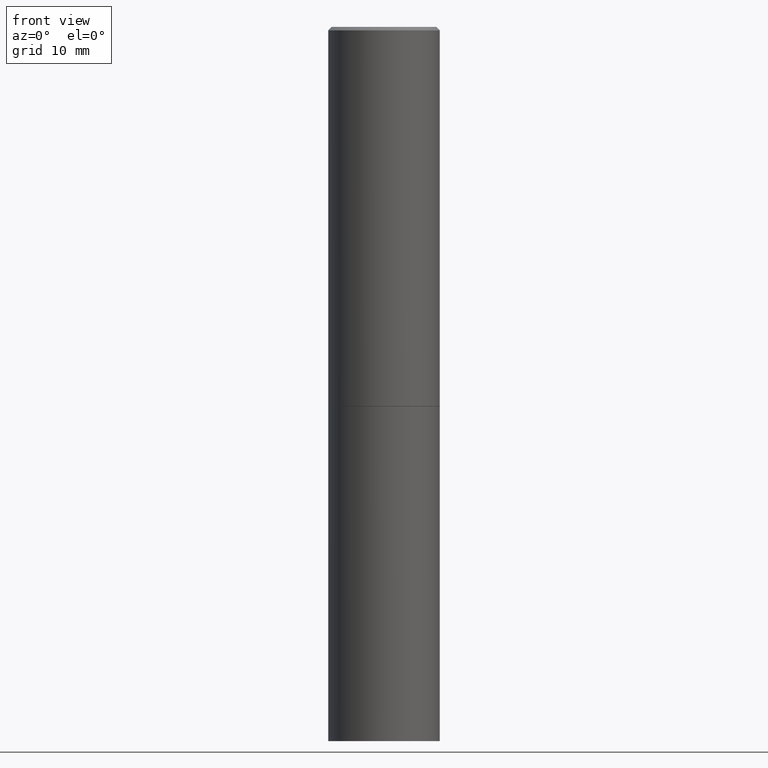
[diagram: clean part render]
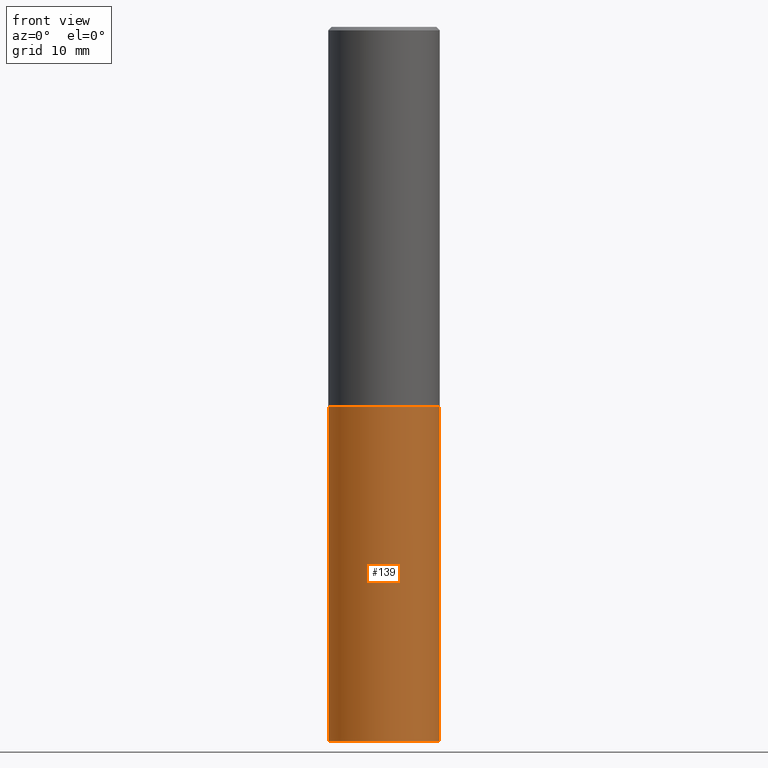
[diagram: same view with one face highlighted and labeled with its STEP entity id]
A machine part, front view. The second image highlights one B-rep face of the part: STEP entity #139.
In plain terms, the highlighted cylindrical surface (partial cylindrical patch) has radius 7.9375 mm, axis along (-0, 0, 1).
Its self-contained STEP definition (entity closure, byte-faithful):
#7 = FACE_OUTER_BOUND ( 'NONE', #359, .T. ) ;
#29 = DIRECTION ( 'NONE',  ( -2.445468806185136597E-29, 3.491481338843145583E-15, 1.000000000000000000 ) ) ;
#45 = VERTEX_POINT ( 'NONE', #331 ) ;
#49 = CARTESIAN_POINT ( 'NONE',  ( 0.3125000000000000000, -1.614810119214954068E-14, -4.000000000000000000 ) ) ;
#80 = EDGE_CURVE ( 'NONE', #111, #45, #246, .T. ) ;
#84 = AXIS2_PLACEMENT_3D ( 'NONE', #119, #120, #92 ) ;
#88 = EDGE_CURVE ( 'NONE', #223, #337, #220, .T. ) ;
#89 = CYLINDRICAL_SURFACE ( 'NONE', #84, 0.3125000000000000000 ) ;
#92 = DIRECTION ( 'NONE',  ( 1.000000000000000000, -6.982962677686266711E-15, 4.876176775795936353E-29 ) ) ;
#99 = CARTESIAN_POINT ( 'NONE',  ( -0.3125000000000000000, -8.472215550956819896E-15, -4.000000000000000000 ) ) ;
#100 = VECTOR ( 'NONE', #192, 39.37007874015748143 ) ;
#111 = VERTEX_POINT ( 'NONE', #49 ) ;
#115 = AXIS2_PLACEMENT_3D ( 'NONE', #282, #29, #235 ) ;
#119 = CARTESIAN_POINT ( 'NONE',  ( 0.000000000000000000, 0.000000000000000000, 0.000000000000000000 ) ) ;
#120 = DIRECTION ( 'NONE',  ( -2.445468806185136597E-29, 3.491481338843145583E-15, 1.000000000000000000 ) ) ;
#138 = CARTESIAN_POINT ( 'NONE',  ( 0.3125000000000000000, -2.182175836776958347E-15, 1.523805242436230075E-29 ) ) ;
#139 = ADVANCED_FACE ( 'NONE', ( #7 ), #89, .T. ) ;
#143 = ORIENTED_EDGE ( 'NONE', *, *, #318, .F. ) ;
#154 = ORIENTED_EDGE ( 'NONE', *, *, #210, .T. ) ;
#157 = ORIENTED_EDGE ( 'NONE', *, *, #88, .F. ) ;
#160 = CARTESIAN_POINT ( 'NONE',  ( -0.3125000000000000000, -8.472215550956819896E-15, -2.124999999999999556 ) ) ;
#192 = DIRECTION ( 'NONE',  ( -2.445468806185136877E-29, 3.491481338843145188E-15, 1.000000000000000000 ) ) ;
#201 = AXIS2_PLACEMENT_3D ( 'NONE', #267, #349, #328 ) ;
#210 = EDGE_CURVE ( 'NONE', #223, #111, #270, .T. ) ;
#220 = LINE ( 'NONE', #302, #340 ) ;
#222 = CIRCLE ( 'NONE', #201, 0.3125000000000000000 ) ;
#223 = VERTEX_POINT ( 'NONE', #99 ) ;
#235 = DIRECTION ( 'NONE',  ( 1.000000000000000000, -6.982962677686269077E-15, 0.000000000000000000 ) ) ;
#246 = LINE ( 'NONE', #138, #100 ) ;
#254 = DIRECTION ( 'NONE',  ( -2.445468806185136877E-29, 3.491481338843145188E-15, 1.000000000000000000 ) ) ;
#259 = ORIENTED_EDGE ( 'NONE', *, *, #80, .T. ) ;
#267 = CARTESIAN_POINT ( 'NONE',  ( 5.196621213143414147E-29, -7.419397845041682046E-15, -2.124999999999999556 ) ) ;
#270 = CIRCLE ( 'NONE', #115, 0.3125000000000000000 ) ;
#282 = CARTESIAN_POINT ( 'NONE',  ( 9.781875224740546387E-29, -1.396592535537258233E-14, -4.000000000000000000 ) ) ;
#302 = CARTESIAN_POINT ( 'NONE',  ( -0.3125000000000000000, 2.220446049250313081E-15, -1.537167215704658232E-29 ) ) ;
#318 = EDGE_CURVE ( 'NONE', #337, #45, #222, .T. ) ;
#328 = DIRECTION ( 'NONE',  ( 1.000000000000000000, -6.982962677686265133E-15, 0.000000000000000000 ) ) ;
#331 = CARTESIAN_POINT ( 'NONE',  ( 0.3125000000000000000, -9.601573681818640393E-15, -2.124999999999999556 ) ) ;
#337 = VERTEX_POINT ( 'NONE', #160 ) ;
#340 = VECTOR ( 'NONE', #254, 39.37007874015748143 ) ;
#349 = DIRECTION ( 'NONE',  ( -2.445468806185136597E-29, 3.491481338843145583E-15, 1.000000000000000000 ) ) ;
#359 = EDGE_LOOP ( 'NONE', ( #157, #154, #259, #143 ) ) ;